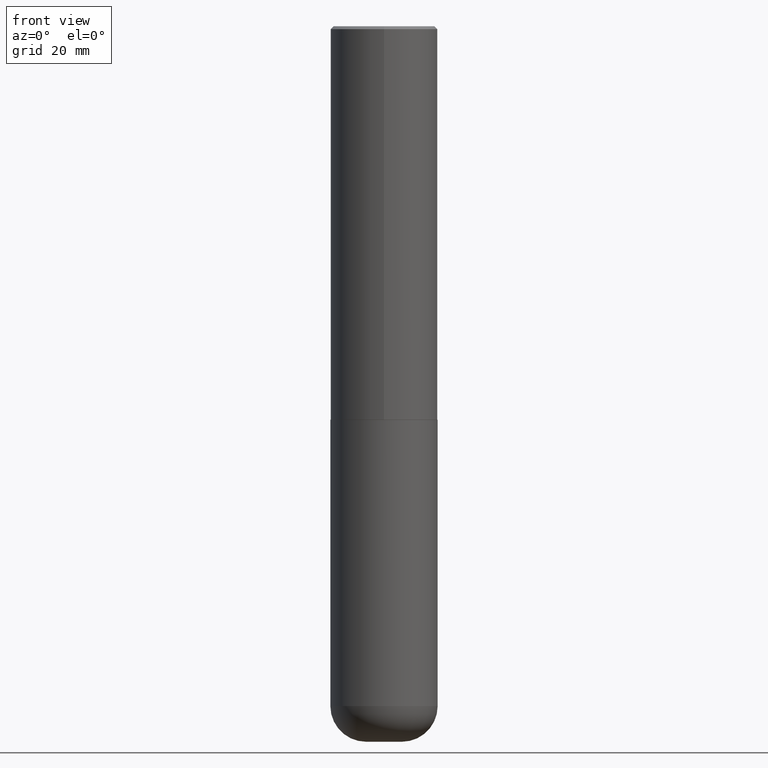
[diagram: clean part render]
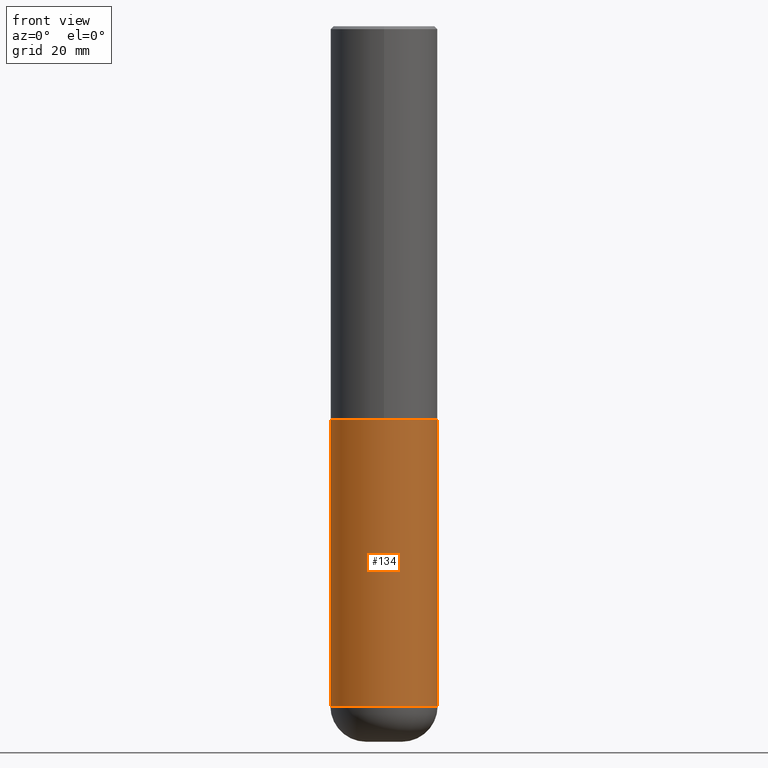
[diagram: same view with one face highlighted and labeled with its STEP entity id]
A machine part, front view. The second image highlights one B-rep face of the part: STEP entity #134.
In plain terms, the highlighted cylindrical surface (partial cylindrical patch) has radius 9.525 mm, axis along (-0, 0, 1).
Its self-contained STEP definition (entity closure, byte-faithful):
#1 = LINE ( 'NONE', #71, #305 ) ;
#2 = DIRECTION ( 'NONE',  ( -2.445468806185136877E-29, 3.491481338843145188E-15, 1.000000000000000000 ) ) ;
#8 = VECTOR ( 'NONE', #2, 39.37007874015748143 ) ;
#16 = AXIS2_PLACEMENT_3D ( 'NONE', #227, #258, #32 ) ;
#32 = DIRECTION ( 'NONE',  ( 1.000000000000000000, -6.982962677686266711E-15, 0.000000000000000000 ) ) ;
#49 = EDGE_CURVE ( 'NONE', #328, #334, #250, .T. ) ;
#56 = CARTESIAN_POINT ( 'NONE',  ( 0.3750000000000002220, -1.920314736363729341E-14, -4.750000000000000000 ) ) ;
#71 = CARTESIAN_POINT ( 'NONE',  ( -0.3749999999999999445, 2.664535259100375303E-15, -1.844600658845589318E-29 ) ) ;
#79 = CARTESIAN_POINT ( 'NONE',  ( 1.161597682937940108E-28, -1.658453635950494339E-14, -4.750000000000000000 ) ) ;
#95 = CIRCLE ( 'NONE', #16, 0.3750000000000000555 ) ;
#102 = ORIENTED_EDGE ( 'NONE', *, *, #146, .T. ) ;
#109 = DIRECTION ( 'NONE',  ( 1.000000000000000000, -6.982962677686269077E-15, 0.000000000000000000 ) ) ;
#122 = DIRECTION ( 'NONE',  ( 1.000000000000000000, -6.982962677686266711E-15, 4.876176775795935793E-29 ) ) ;
#134 = ADVANCED_FACE ( 'NONE', ( #199 ), #287, .T. ) ;
#140 = DIRECTION ( 'NONE',  ( -2.445468806185136877E-29, 3.491481338843145188E-15, 1.000000000000000000 ) ) ;
#143 = ORIENTED_EDGE ( 'NONE', *, *, #347, .F. ) ;
#146 = EDGE_CURVE ( 'NONE', #364, #328, #200, .T. ) ;
#199 = FACE_OUTER_BOUND ( 'NONE', #271, .T. ) ;
#200 = CIRCLE ( 'NONE', #247, 0.3749999999999999445 ) ;
#222 = CARTESIAN_POINT ( 'NONE',  ( 0.3750000000000000555, -1.222018468595100145E-14, -2.750000000000000000 ) ) ;
#227 = CARTESIAN_POINT ( 'NONE',  ( 6.725039217009124520E-29, -9.601573681818649859E-15, -2.750000000000000000 ) ) ;
#237 = ORIENTED_EDGE ( 'NONE', *, *, #49, .T. ) ;
#247 = AXIS2_PLACEMENT_3D ( 'NONE', #79, #341, #109 ) ;
#250 = LINE ( 'NONE', #385, #8 ) ;
#258 = DIRECTION ( 'NONE',  ( -2.445468806185136597E-29, 3.491481338843145583E-15, 1.000000000000000000 ) ) ;
#261 = CARTESIAN_POINT ( 'NONE',  ( 0.000000000000000000, 0.000000000000000000, 0.000000000000000000 ) ) ;
#271 = EDGE_LOOP ( 'NONE', ( #294, #102, #237, #143 ) ) ;
#281 = EDGE_CURVE ( 'NONE', #364, #308, #1, .T. ) ;
#286 = CARTESIAN_POINT ( 'NONE',  ( -0.3750000000000002220, -1.392000110040456296E-14, -4.750000000000000000 ) ) ;
#287 = CYLINDRICAL_SURFACE ( 'NONE', #413, 0.3749999999999999445 ) ;
#294 = ORIENTED_EDGE ( 'NONE', *, *, #281, .F. ) ;
#305 = VECTOR ( 'NONE', #140, 39.37007874015748143 ) ;
#308 = VERTEX_POINT ( 'NONE', #408 ) ;
#328 = VERTEX_POINT ( 'NONE', #56 ) ;
#334 = VERTEX_POINT ( 'NONE', #222 ) ;
#341 = DIRECTION ( 'NONE',  ( -2.445468806185136597E-29, 3.491481338843145583E-15, 1.000000000000000000 ) ) ;
#347 = EDGE_CURVE ( 'NONE', #308, #334, #95, .T. ) ;
#364 = VERTEX_POINT ( 'NONE', #286 ) ;
#376 = DIRECTION ( 'NONE',  ( -2.445468806185136597E-29, 3.491481338843145583E-15, 1.000000000000000000 ) ) ;
#385 = CARTESIAN_POINT ( 'NONE',  ( 0.3749999999999999445, -2.618611004132349622E-15, 1.828566290923475642E-29 ) ) ;
#408 = CARTESIAN_POINT ( 'NONE',  ( -0.3750000000000000555, -1.042851976156142014E-14, -2.750000000000000000 ) ) ;
#413 = AXIS2_PLACEMENT_3D ( 'NONE', #261, #376, #122 ) ;